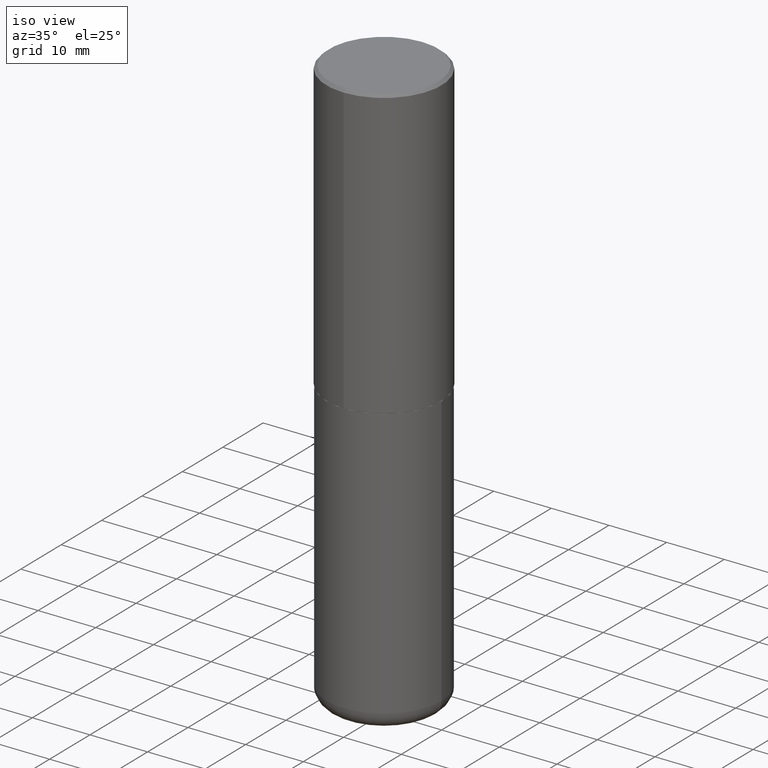
[diagram: clean part render]
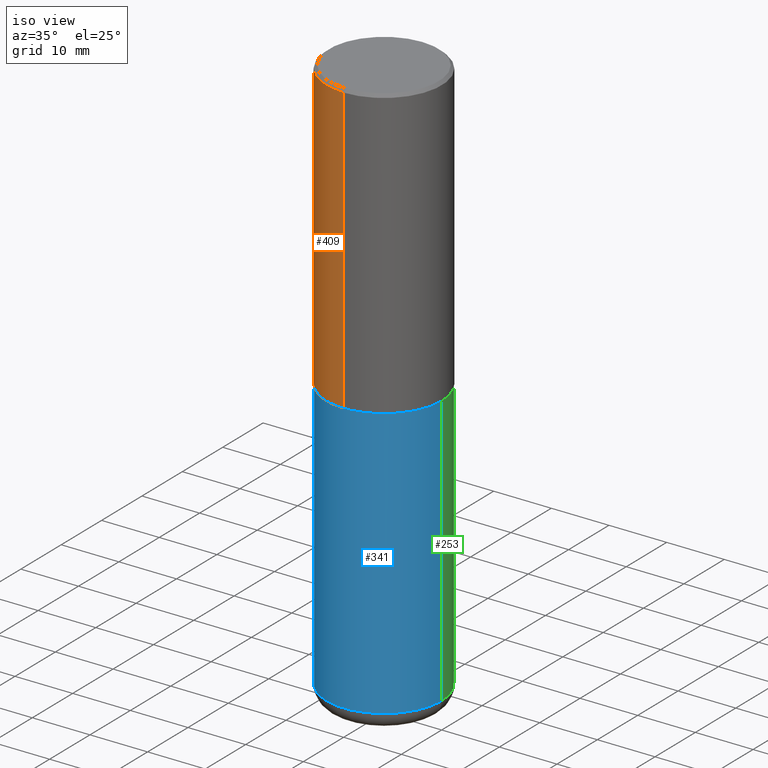
[diagram: same view with three faces highlighted in distinct colors, each labeled with its STEP entity id]
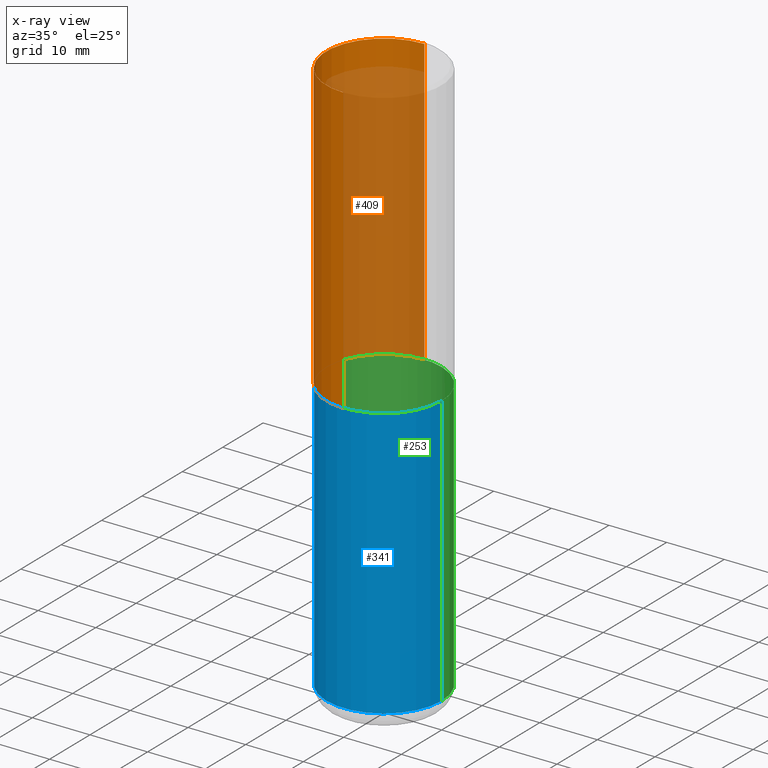
[diagram: x-ray of the same camera — body ghosted, the three highlighted faces saturated]
A machine part, iso view with three faces highlighted in distinct colors.
The next image is the same camera in x-ray (body ghosted, the three faces saturated) — at least one of them is partly hidden behind the body in this view.
Their STEP definitions:

[orange] entity #409 — the highlighted cylindrical surface (partial cylindrical patch) has radius 10 mm, axis along (-0, 0, 1).
#3 = CIRCLE ( 'NONE', #62, 0.3937000000000002720 ) ;
#10 = EDGE_CURVE ( 'NONE', #297, #280, #158, .T. ) ;
#14 = CARTESIAN_POINT ( 'NONE',  ( 2.749192406205084005E-15, 0.3937000000000000499, -0.02000000000000146105 ) ) ;
#17 = CARTESIAN_POINT ( 'NONE',  ( 2.797406750687540424E-15, 0.3936999999999934441, -1.967500000000001359 ) ) ;
#32 = ORIENTED_EDGE ( 'NONE', *, *, #308, .F. ) ;
#53 = CYLINDRICAL_SURFACE ( 'NONE', #267, 0.3937000000000002164 ) ;
#59 = CARTESIAN_POINT ( 'NONE',  ( -2.749192406205036674E-15, -0.3937000000000070998, -1.967499999999998694 ) ) ;
#62 = AXIS2_PLACEMENT_3D ( 'NONE', #264, #187, #166 ) ;
#74 = DIRECTION ( 'NONE',  ( -2.447902336346030930E-29, 3.487996385144809360E-15, 1.000000000000000000 ) ) ;
#80 = CARTESIAN_POINT ( 'NONE',  ( -2.700978061722651647E-15, -0.3937000000000001609, -0.01999999999999870978 ) ) ;
#94 = CARTESIAN_POINT ( 'NONE',  ( -2.749192406205084400E-15, -0.3937000000000002164, 1.373224176831512262E-15 ) ) ;
#122 = VERTEX_POINT ( 'NONE', #59 ) ;
#138 = AXIS2_PLACEMENT_3D ( 'NONE', #366, #141, #332 ) ;
#139 = VECTOR ( 'NONE', #360, 39.37007874015748143 ) ;
#141 = DIRECTION ( 'NONE',  ( -2.447902336346030930E-29, 3.487996385144809755E-15, 1.000000000000000000 ) ) ;
#148 = ORIENTED_EDGE ( 'NONE', *, *, #10, .F. ) ;
#158 = LINE ( 'NONE', #230, #240 ) ;
#166 = DIRECTION ( 'NONE',  ( -6.982962677686265922E-15, -1.000000000000000000, 3.469453890861393601E-15 ) ) ;
#169 = CARTESIAN_POINT ( 'NONE',  ( 0.000000000000000000, 0.000000000000000000, 0.000000000000000000 ) ) ;
#187 = DIRECTION ( 'NONE',  ( -2.447902336346030930E-29, 3.487996385144809755E-15, 1.000000000000000000 ) ) ;
#204 = EDGE_LOOP ( 'NONE', ( #148, #383, #221, #32 ) ) ;
#221 = ORIENTED_EDGE ( 'NONE', *, *, #396, .T. ) ;
#230 = CARTESIAN_POINT ( 'NONE',  ( 2.797406750687515575E-15, 0.3937000000000002164, -1.373224176831512262E-15 ) ) ;
#240 = VECTOR ( 'NONE', #74, 39.37007874015748143 ) ;
#264 = CARTESIAN_POINT ( 'NONE',  ( 4.816247846760815671E-29, -6.862632887772413316E-15, -1.967500000000000027 ) ) ;
#267 = AXIS2_PLACEMENT_3D ( 'NONE', #169, #337, #369 ) ;
#280 = VERTEX_POINT ( 'NONE', #14 ) ;
#284 = VERTEX_POINT ( 'NONE', #80 ) ;
#297 = VERTEX_POINT ( 'NONE', #17 ) ;
#300 = FACE_OUTER_BOUND ( 'NONE', #204, .T. ) ;
#308 = EDGE_CURVE ( 'NONE', #280, #284, #321, .T. ) ;
#321 = CIRCLE ( 'NONE', #138, 0.3937000000000001054 ) ;
#332 = DIRECTION ( 'NONE',  ( -6.982962677686265133E-15, -1.000000000000000000, 3.491137977679279029E-15 ) ) ;
#337 = DIRECTION ( 'NONE',  ( -2.447902336346030930E-29, 3.487996385144809755E-15, 1.000000000000000000 ) ) ;
#360 = DIRECTION ( 'NONE',  ( -2.447902336346030930E-29, 3.487996385144809360E-15, 1.000000000000000000 ) ) ;
#366 = CARTESIAN_POINT ( 'NONE',  ( 4.895804672692082949E-31, -6.975992770289649092E-17, -0.02000000000000008715 ) ) ;
#369 = DIRECTION ( 'NONE',  ( -6.982962677686265922E-15, -1.000000000000000000, 3.487996385144809360E-15 ) ) ;
#379 = EDGE_CURVE ( 'NONE', #297, #122, #3, .T. ) ;
#383 = ORIENTED_EDGE ( 'NONE', *, *, #379, .T. ) ;
#384 = LINE ( 'NONE', #94, #139 ) ;
#396 = EDGE_CURVE ( 'NONE', #122, #284, #384, .T. ) ;
#409 = ADVANCED_FACE ( 'NONE', ( #300 ), #53, .T. ) ;

[blue] entity #341 — the highlighted cylindrical surface (partial cylindrical patch) has radius 10 mm, axis along (-0, 0, 1).
#11 = DIRECTION ( 'NONE',  ( 1.000000000000000000, -6.982962677686266711E-15, 4.876176775795935793E-29 ) ) ;
#12 = CIRCLE ( 'NONE', #181, 0.3937000000000000499 ) ;
#27 = CYLINDRICAL_SURFACE ( 'NONE', #249, 0.3937000000000001054 ) ;
#46 = CARTESIAN_POINT ( 'NONE',  ( 0.3937000000000000499, -9.622173421717814924E-15, -1.968500000000000139 ) ) ;
#60 = EDGE_CURVE ( 'NONE', #190, #219, #340, .T. ) ;
#73 = VECTOR ( 'NONE', #322, 39.37007874015748143 ) ;
#120 = EDGE_CURVE ( 'NONE', #219, #316, #397, .T. ) ;
#163 = CARTESIAN_POINT ( 'NONE',  ( -0.3937000000000000499, -7.305892799522895709E-15, -1.968500000000000139 ) ) ;
#178 = ORIENTED_EDGE ( 'NONE', *, *, #60, .T. ) ;
#181 = AXIS2_PLACEMENT_3D ( 'NONE', #220, #418, #200 ) ;
#184 = ORIENTED_EDGE ( 'NONE', *, *, #120, .T. ) ;
#190 = VERTEX_POINT ( 'NONE', #245 ) ;
#191 = DIRECTION ( 'NONE',  ( -2.445468806185136877E-29, 3.491481338843145188E-15, 1.000000000000000000 ) ) ;
#200 = DIRECTION ( 'NONE',  ( 1.000000000000000000, -6.982962677686265133E-15, 0.000000000000000000 ) ) ;
#207 = CARTESIAN_POINT ( 'NONE',  ( 9.339000823940418668E-29, -1.333361808490808928E-14, -3.818900000000000183 ) ) ;
#213 = ORIENTED_EDGE ( 'NONE', *, *, #345, .F. ) ;
#217 = VECTOR ( 'NONE', #191, 39.37007874015748143 ) ;
#219 = VERTEX_POINT ( 'NONE', #415 ) ;
#220 = CARTESIAN_POINT ( 'NONE',  ( 4.813905344975441835E-29, -6.872981015512731707E-15, -1.968500000000000139 ) ) ;
#237 = FACE_OUTER_BOUND ( 'NONE', #312, .T. ) ;
#245 = CARTESIAN_POINT ( 'NONE',  ( -0.3937000000000001054, -1.053621133422057529E-14, -3.818900000000000183 ) ) ;
#249 = AXIS2_PLACEMENT_3D ( 'NONE', #288, #330, #11 ) ;
#256 = CARTESIAN_POINT ( 'NONE',  ( -0.3937000000000001054, 2.797406750687515181E-15, -1.936584745033357016E-29 ) ) ;
#274 = AXIS2_PLACEMENT_3D ( 'NONE', #207, #302, #328 ) ;
#288 = CARTESIAN_POINT ( 'NONE',  ( 0.000000000000000000, 0.000000000000000000, 0.000000000000000000 ) ) ;
#294 = ORIENTED_EDGE ( 'NONE', *, *, #388, .F. ) ;
#302 = DIRECTION ( 'NONE',  ( -2.445468806185136597E-29, 3.491481338843145583E-15, 1.000000000000000000 ) ) ;
#304 = LINE ( 'NONE', #256, #73 ) ;
#312 = EDGE_LOOP ( 'NONE', ( #294, #178, #184, #213 ) ) ;
#316 = VERTEX_POINT ( 'NONE', #46 ) ;
#322 = DIRECTION ( 'NONE',  ( -2.445468806185136877E-29, 3.491481338843145188E-15, 1.000000000000000000 ) ) ;
#324 = VERTEX_POINT ( 'NONE', #163 ) ;
#328 = DIRECTION ( 'NONE',  ( 1.000000000000000000, -6.982962677686266711E-15, 0.000000000000000000 ) ) ;
#330 = DIRECTION ( 'NONE',  ( -2.445468806185136597E-29, 3.491481338843145583E-15, 1.000000000000000000 ) ) ;
#340 = CIRCLE ( 'NONE', #274, 0.3937000000000001054 ) ;
#341 = ADVANCED_FACE ( 'NONE', ( #237 ), #27, .T. ) ;
#345 = EDGE_CURVE ( 'NONE', #324, #316, #12, .T. ) ;
#358 = CARTESIAN_POINT ( 'NONE',  ( 0.3937000000000001054, -2.749192406205084005E-15, 1.919750796630860452E-29 ) ) ;
#388 = EDGE_CURVE ( 'NONE', #190, #324, #304, .T. ) ;
#397 = LINE ( 'NONE', #358, #217 ) ;
#415 = CARTESIAN_POINT ( 'NONE',  ( 0.3937000000000001054, -1.608281049111317408E-14, -3.818900000000000183 ) ) ;
#418 = DIRECTION ( 'NONE',  ( -2.445468806185136597E-29, 3.491481338843145583E-15, 1.000000000000000000 ) ) ;

[green] entity #253 — the highlighted cylindrical surface (partial cylindrical patch) has radius 10 mm, axis along (-0, 0, 1).
#23 = AXIS2_PLACEMENT_3D ( 'NONE', #161, #241, #298 ) ;
#40 = CIRCLE ( 'NONE', #223, 0.3937000000000000499 ) ;
#46 = CARTESIAN_POINT ( 'NONE',  ( 0.3937000000000000499, -9.622173421717814924E-15, -1.968500000000000139 ) ) ;
#48 = ORIENTED_EDGE ( 'NONE', *, *, #146, .F. ) ;
#56 = DIRECTION ( 'NONE',  ( 1.000000000000000000, -6.982962677686265133E-15, 0.000000000000000000 ) ) ;
#73 = VECTOR ( 'NONE', #322, 39.37007874015748143 ) ;
#90 = EDGE_LOOP ( 'NONE', ( #255, #227, #48, #325 ) ) ;
#100 = EDGE_CURVE ( 'NONE', #219, #190, #180, .T. ) ;
#102 = FACE_OUTER_BOUND ( 'NONE', #90, .T. ) ;
#120 = EDGE_CURVE ( 'NONE', #219, #316, #397, .T. ) ;
#142 = DIRECTION ( 'NONE',  ( -2.445468806185136597E-29, 3.491481338843145583E-15, 1.000000000000000000 ) ) ;
#146 = EDGE_CURVE ( 'NONE', #316, #324, #40, .T. ) ;
#161 = CARTESIAN_POINT ( 'NONE',  ( 9.339000823940418668E-29, -1.333361808490808928E-14, -3.818900000000000183 ) ) ;
#163 = CARTESIAN_POINT ( 'NONE',  ( -0.3937000000000000499, -7.305892799522895709E-15, -1.968500000000000139 ) ) ;
#180 = CIRCLE ( 'NONE', #23, 0.3937000000000001054 ) ;
#190 = VERTEX_POINT ( 'NONE', #245 ) ;
#191 = DIRECTION ( 'NONE',  ( -2.445468806185136877E-29, 3.491481338843145188E-15, 1.000000000000000000 ) ) ;
#217 = VECTOR ( 'NONE', #191, 39.37007874015748143 ) ;
#219 = VERTEX_POINT ( 'NONE', #415 ) ;
#223 = AXIS2_PLACEMENT_3D ( 'NONE', #407, #142, #56 ) ;
#227 = ORIENTED_EDGE ( 'NONE', *, *, #388, .T. ) ;
#241 = DIRECTION ( 'NONE',  ( -2.445468806185136597E-29, 3.491481338843145583E-15, 1.000000000000000000 ) ) ;
#243 = DIRECTION ( 'NONE',  ( -2.445468806185136597E-29, 3.491481338843145583E-15, 1.000000000000000000 ) ) ;
#245 = CARTESIAN_POINT ( 'NONE',  ( -0.3937000000000001054, -1.053621133422057529E-14, -3.818900000000000183 ) ) ;
#253 = ADVANCED_FACE ( 'NONE', ( #102 ), #374, .T. ) ;
#255 = ORIENTED_EDGE ( 'NONE', *, *, #100, .T. ) ;
#256 = CARTESIAN_POINT ( 'NONE',  ( -0.3937000000000001054, 2.797406750687515181E-15, -1.936584745033357016E-29 ) ) ;
#298 = DIRECTION ( 'NONE',  ( 1.000000000000000000, -6.982962677686266711E-15, 0.000000000000000000 ) ) ;
#304 = LINE ( 'NONE', #256, #73 ) ;
#307 = DIRECTION ( 'NONE',  ( 1.000000000000000000, -6.982962677686266711E-15, 4.876176775795935793E-29 ) ) ;
#316 = VERTEX_POINT ( 'NONE', #46 ) ;
#322 = DIRECTION ( 'NONE',  ( -2.445468806185136877E-29, 3.491481338843145188E-15, 1.000000000000000000 ) ) ;
#324 = VERTEX_POINT ( 'NONE', #163 ) ;
#325 = ORIENTED_EDGE ( 'NONE', *, *, #120, .F. ) ;
#336 = CARTESIAN_POINT ( 'NONE',  ( 0.000000000000000000, 0.000000000000000000, 0.000000000000000000 ) ) ;
#347 = AXIS2_PLACEMENT_3D ( 'NONE', #336, #243, #307 ) ;
#358 = CARTESIAN_POINT ( 'NONE',  ( 0.3937000000000001054, -2.749192406205084005E-15, 1.919750796630860452E-29 ) ) ;
#374 = CYLINDRICAL_SURFACE ( 'NONE', #347, 0.3937000000000001054 ) ;
#388 = EDGE_CURVE ( 'NONE', #190, #324, #304, .T. ) ;
#397 = LINE ( 'NONE', #358, #217 ) ;
#407 = CARTESIAN_POINT ( 'NONE',  ( 4.813905344975441835E-29, -6.872981015512731707E-15, -1.968500000000000139 ) ) ;
#415 = CARTESIAN_POINT ( 'NONE',  ( 0.3937000000000001054, -1.608281049111317408E-14, -3.818900000000000183 ) ) ;